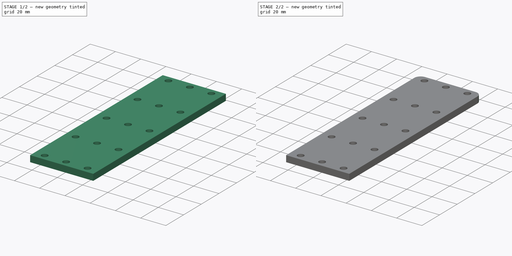
[diagram: build sequence overview — one tinted view per stage of 2, left to right]
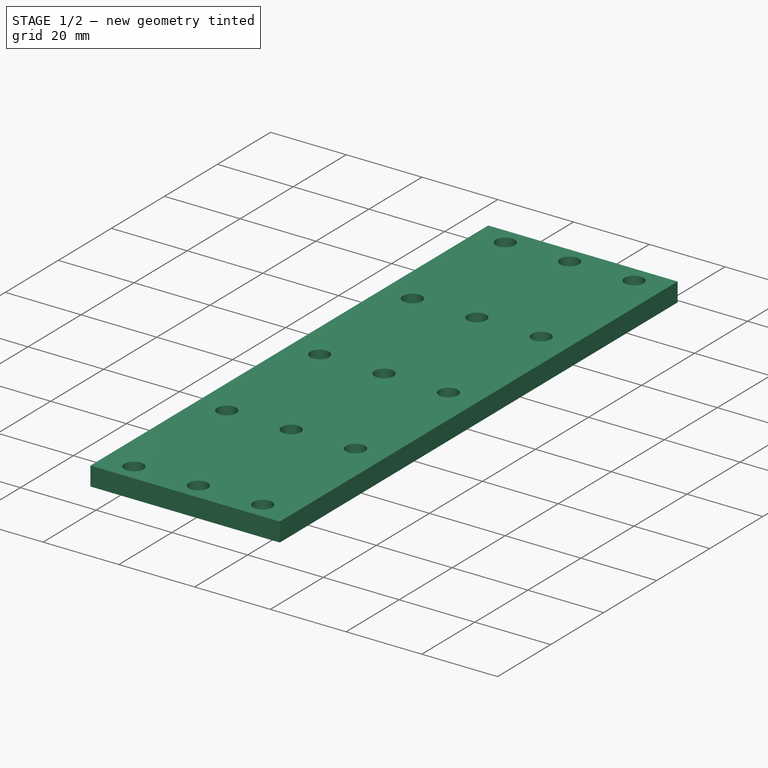
[diagram: stage 1 of 2 — iso view after this stage's code; geometry added in this stage tinted green]
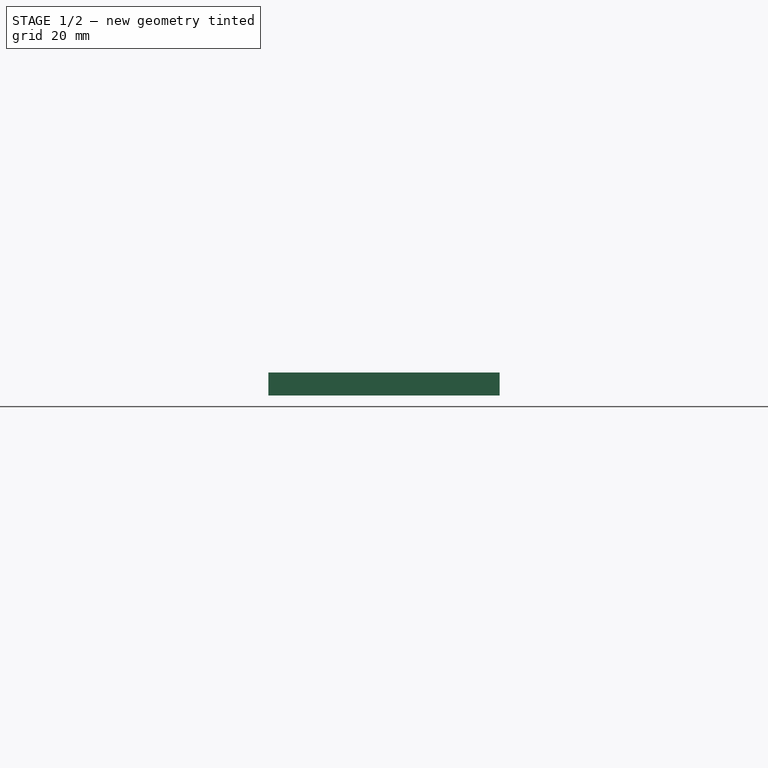
[diagram: stage 1 of 2 — front view after this stage's code; geometry added in this stage tinted green]
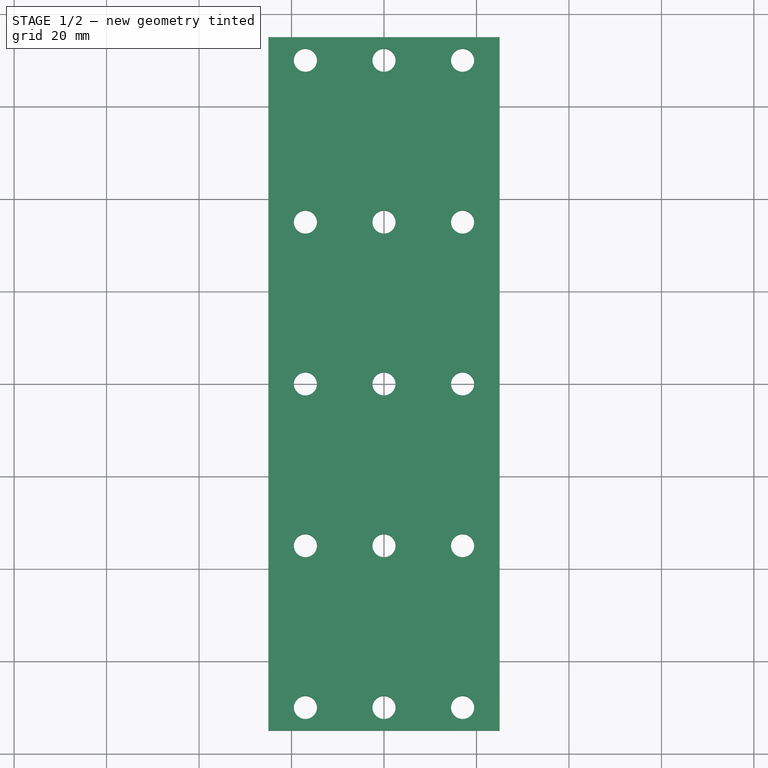
[diagram: stage 1 of 2 — top view after this stage's code; geometry added in this stage tinted green]
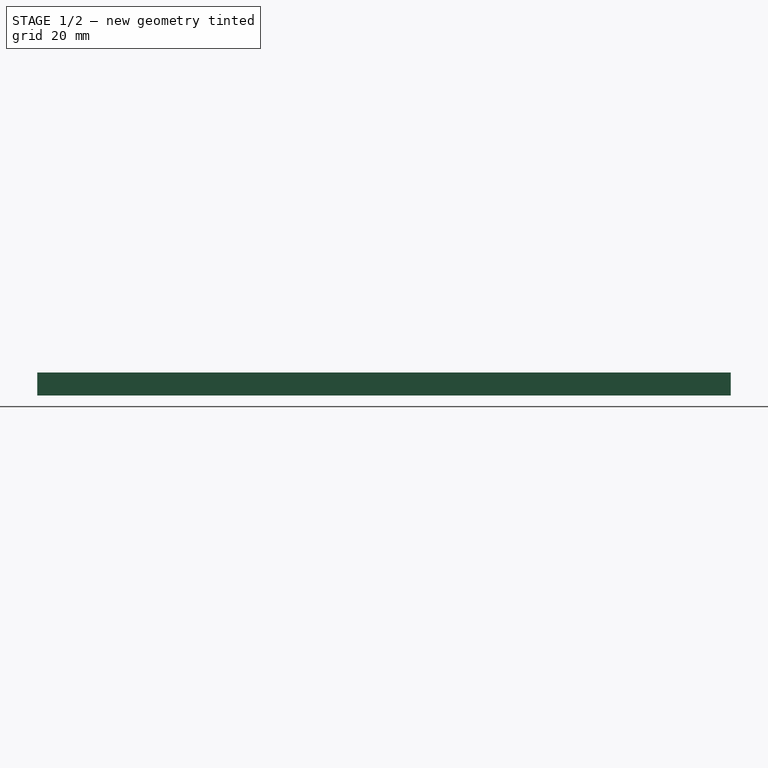
[diagram: stage 1 of 2 — right view after this stage's code; geometry added in this stage tinted green]
FCSTD DOCUMENT  (FreeCAD 0.21R33771 (Git))
Label: holder
License: All rights reserved
LicenseURL: https://en.wikipedia.org/wiki/All_rights_reserved
objects: Sketcher::SketchObject×1, PartDesign::Pad×1, PartDesign::Fillet×1, PartDesign::Body×1
note: 6 computed .brp shape members not serialized (recipe doc carries the construction recipe); baked Part::Feature solids carry a one-line shape summary decoded from their .brp

FEATURE [Sketcher::SketchObject] Sketch
  FullyConstrained = true
  MapMode = 5
  Support = -> [XY_Plane]
  sketch-geometry (19):
    g0: LineSegment StartX=-25 StartY=75 StartZ=0 EndX=25 EndY=75 EndZ=0
    g1: LineSegment StartX=25 StartY=75 StartZ=0 EndX=25 EndY=-75 EndZ=0
    g2: LineSegment StartX=25 StartY=-75 StartZ=0 EndX=-25 EndY=-75 EndZ=0
    g3: LineSegment StartX=-25 StartY=-75 StartZ=0 EndX=-25 EndY=75 EndZ=0
    g4: Circle CenterX=-17 CenterY=70 CenterZ=0 NormalX=0 NormalY=0 NormalZ=1 AngleXU=0 Radius=2.5
    g5: Circle CenterX=17 CenterY=70 CenterZ=0 NormalX=0 NormalY=0 NormalZ=1 AngleXU=0 Radius=2.5
    g6: Circle CenterX=0 CenterY=70 CenterZ=0 NormalX=0 NormalY=0 NormalZ=1 AngleXU=0 Radius=2.5
    g7: Circle CenterX=-17 CenterY=-70 CenterZ=0 NormalX=0 NormalY=0 NormalZ=1 AngleXU=0 Radius=2.5
    g8: Circle CenterX=0 CenterY=-70 CenterZ=0 NormalX=0 NormalY=0 NormalZ=1 AngleXU=0 Radius=2.5
    g9: Circle CenterX=17 CenterY=-70 CenterZ=0 NormalX=0 NormalY=0 NormalZ=1 AngleXU=0 Radius=2.5
    g10: Circle CenterX=-17 CenterY=-35 CenterZ=0 NormalX=0 NormalY=0 NormalZ=1 AngleXU=0 Radius=2.5
    g11: Circle CenterX=0 CenterY=-35 CenterZ=0 NormalX=0 NormalY=0 NormalZ=1 AngleXU=0 Radius=2.5
    g12: Circle CenterX=17 CenterY=-35 CenterZ=0 NormalX=0 NormalY=0 NormalZ=1 AngleXU=0 Radius=2.5
    g13: Circle CenterX=17 CenterY=-9e-16 CenterZ=0 NormalX=0 NormalY=0 NormalZ=1 AngleXU=0 Radius=2.5
    g14: Circle CenterX=0 CenterY=-9e-16 CenterZ=0 NormalX=0 NormalY=0 NormalZ=1 AngleXU=0 Radius=2.5
    g15: Circle CenterX=-17 CenterY=-9e-16 CenterZ=0 NormalX=0 NormalY=0 NormalZ=1 AngleXU=0 Radius=2.5
    g16: Circle CenterX=-17 CenterY=35 CenterZ=0 NormalX=0 NormalY=0 NormalZ=1 AngleXU=0 Radius=2.5
    g17: Circle CenterX=0 CenterY=35 CenterZ=0 NormalX=0 NormalY=0 NormalZ=1 AngleXU=0 Radius=2.5
    g18: Circle CenterX=17 CenterY=35 CenterZ=0 NormalX=0 NormalY=0 NormalZ=1 AngleXU=0 Radius=2.5
  constraints (56):
    c: Coincident(g0,g1)
    c: Coincident(g1,g2)
    c: Coincident(g2,g3)
    c: Coincident(g3,g0)
    c: Horizontal(g0)
    c: Horizontal(g2)
    c: Vertical(g1)
    c: Vertical(g3)
    c: DistanceX(g0,g0) = 50
    c: DistanceY(g1,g1) = 150
    c: Symmetric(g2,g0,g-1)
    c: Diameter(g4) = 5
    c: Diameter(g5) = 5
    c: PointOnObject(g6,g-2)
    c: Diameter(g6) = 5
    c: Horizontal(g4,g6)
    c: Horizontal(g6,g5)
    c: DistanceY(g4,g0) = 5
    c: DistanceX(g0,g4) = 8
    c: DistanceX(g5,g0) = 8
    c: PointOnObject(g8,g-2)
    c: PointOnObject(g11,g-2)
    c: PointOnObject(g14,g-2)
    c: PointOnObject(g17,g-2)
    c: Diameter(g17) = 5
    c: Diameter(g14) = 5
    c: Diameter(g11) = 5
    c: Diameter(g8) = 5
    c: Diameter(g7) = 5
    c: Diameter(g9) = 5
    c: Equal(g10,g12)
    c: Equal(g10,g13)
    c: Equal(g10,g15)
    c: Equal(g10,g18)
    c: Equal(g10,g16)
    c: Diameter(g10) = 5
    c: Vertical(g16,g4)
    c: Vertical(g15,g10)
    c: Vertical(g10,g7)
    c: Vertical(g9,g12)
    c: Vertical(g12,g13)
    c: Vertical(g18,g5)
    c: Horizontal(g16,g17)
    c: Horizontal(g17,g18)
    c: Horizontal(g15,g14)
    c: Horizontal(g14,g13)
    c: Horizontal(g10,g11)
    c: Horizontal(g11,g12)
    c: Horizontal(g7,g8)
    c: Horizontal(g8,g9)
    c: DistanceY(g2,g7) = 5
    c: DistanceY(g7,g10) = 35
    c: DistanceY(g10,g15) = 35
    c: DistanceY(g15,g16) = 35
    c: Vertical(g18,g13)
    c: Vertical(g7,g16)
FEATURE [PartDesign::Pad] Pad
  Direction = (0,0,1)
  Length = 5
  Length2 = 10
  Profile = -> Sketch
  ReferenceAxis = -> Sketch [N_Axis]
  Type = 0
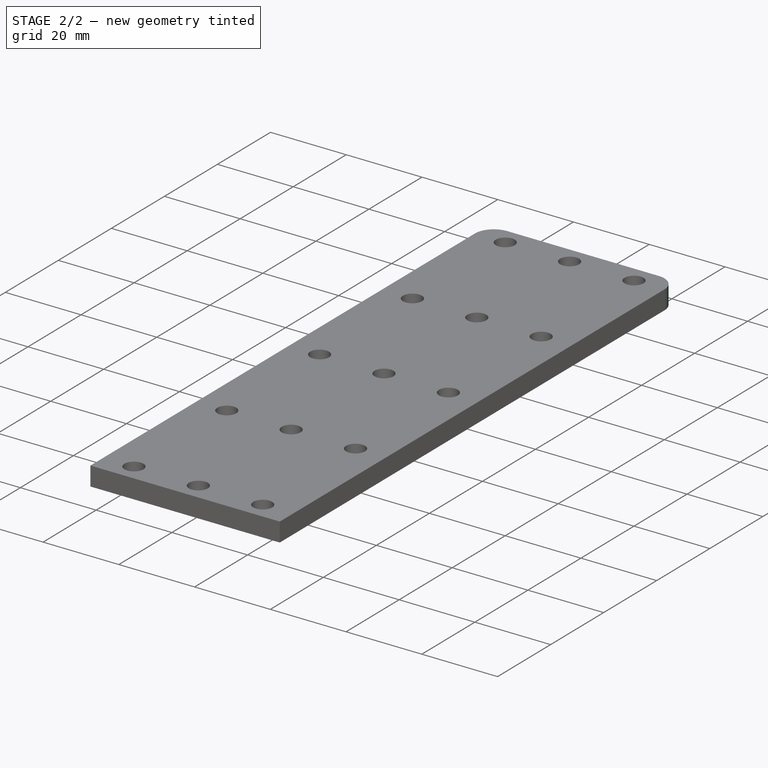
[diagram: stage 2 of 2 — iso view after this stage's code; geometry added in this stage tinted green]
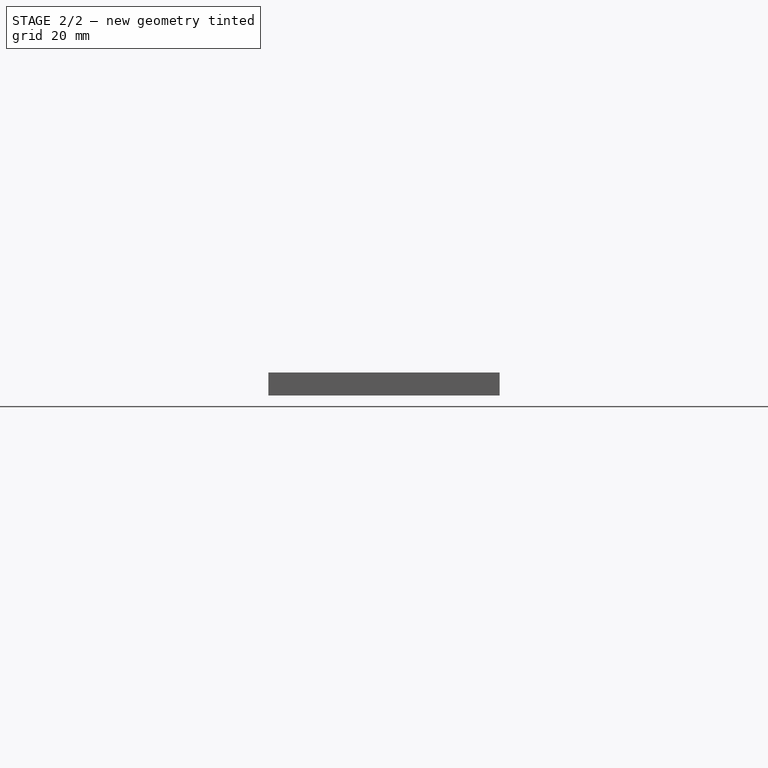
[diagram: stage 2 of 2 — front view after this stage's code; geometry added in this stage tinted green]
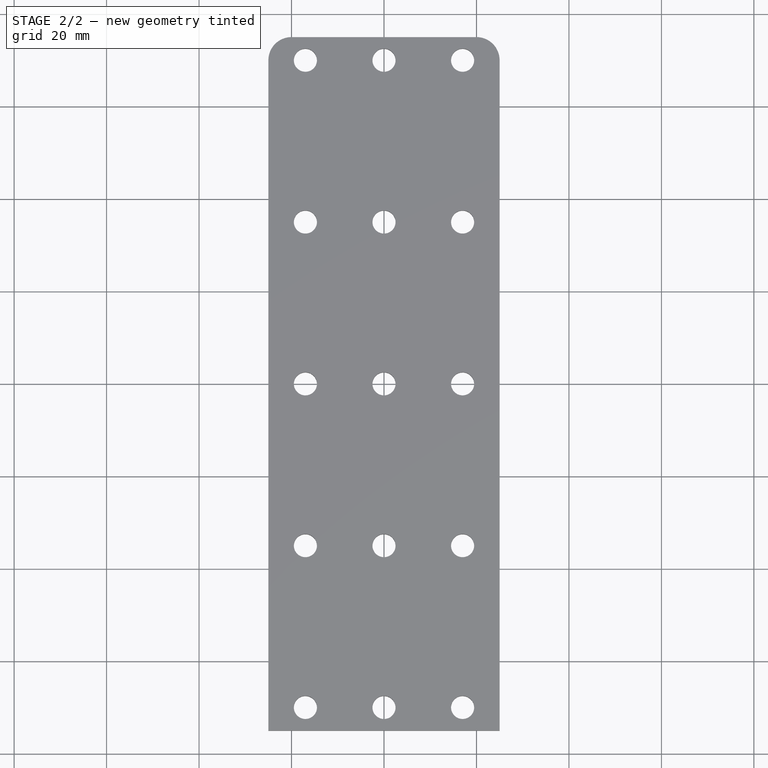
[diagram: stage 2 of 2 — top view after this stage's code; geometry added in this stage tinted green]
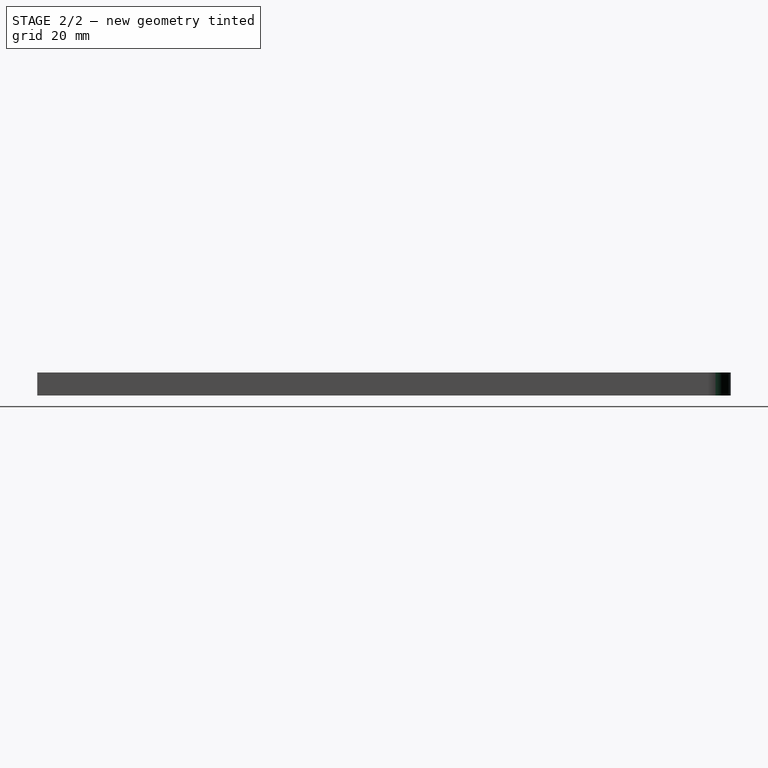
[diagram: stage 2 of 2 — right view after this stage's code; geometry added in this stage tinted green]
FEATURE [PartDesign::Fillet] Fillet
  Base = -> Pad [Edge1,Edge2]
  BaseFeature = -> Pad
  Radius = 5
  SupportTransform = false
  UseAllEdges = false
FEATURE [PartDesign::Body] Body
  Group = -> [Sketch,Pad,Fillet]
  Origin = -> Origin
  Tip = -> Fillet
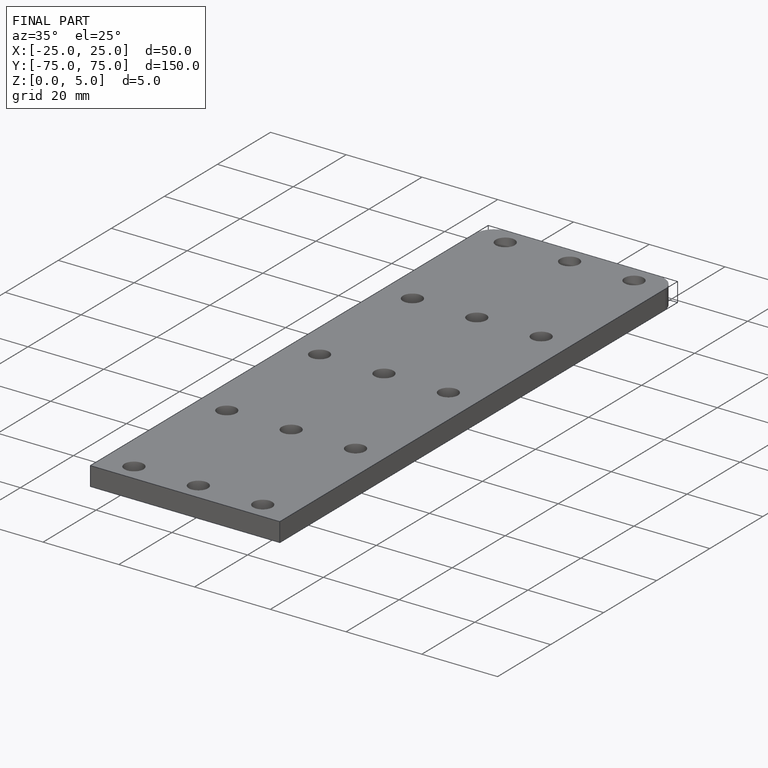
[diagram: finished part — iso view with bounding-box wireframe]
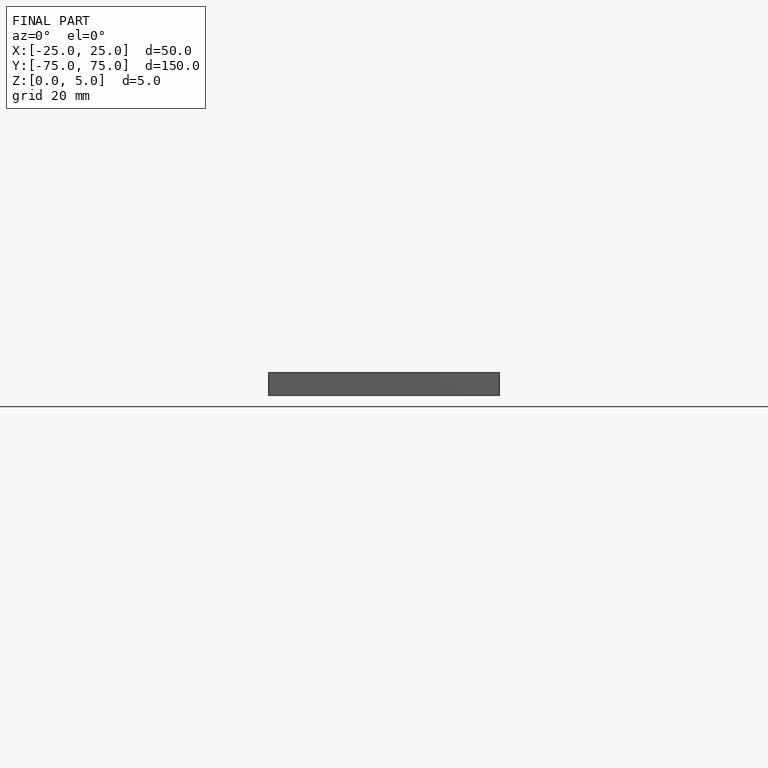
[diagram: finished part — front view with bounding-box wireframe]
